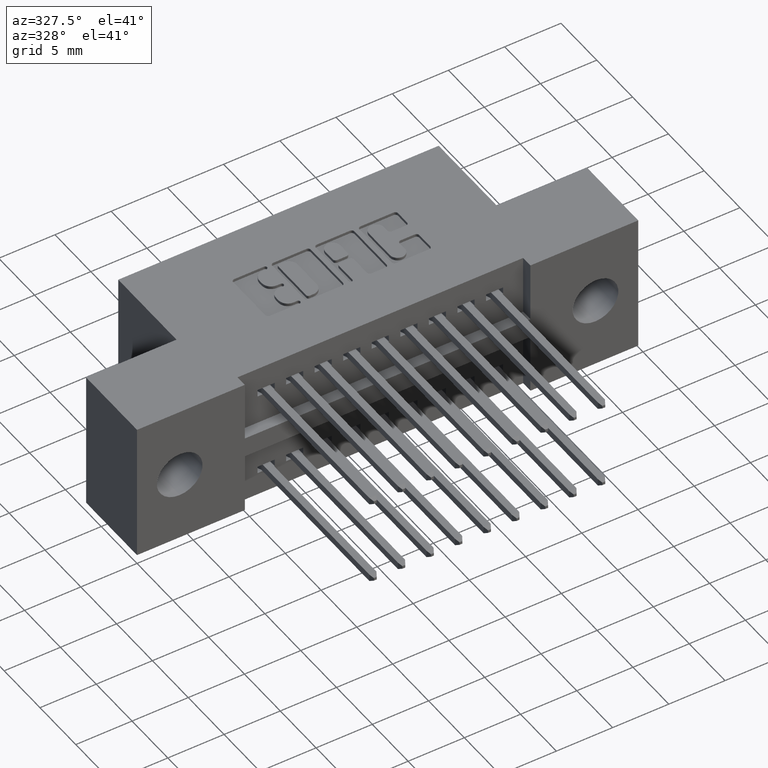
[diagram: clean part render]
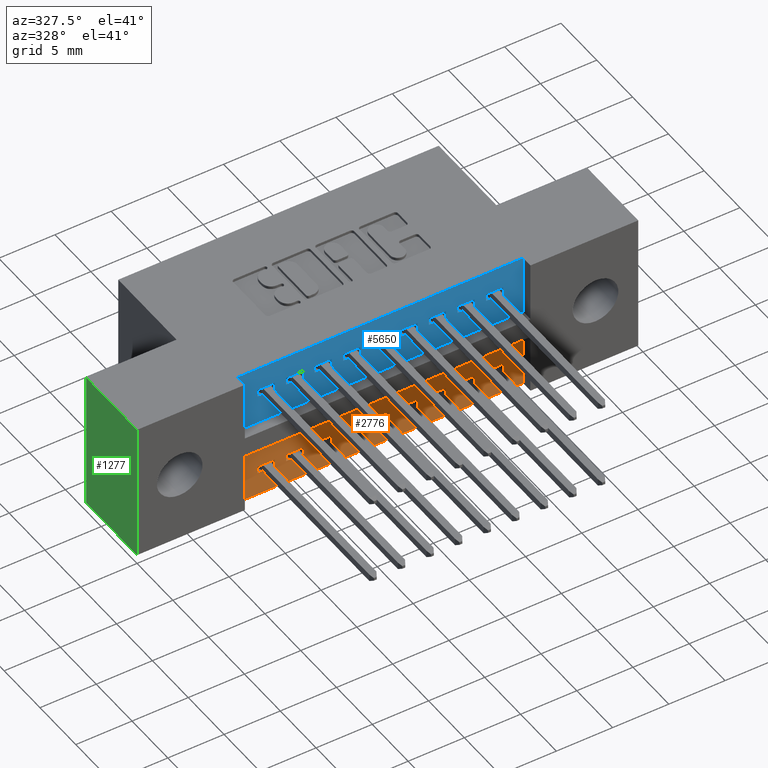
[diagram: same view with three faces highlighted in distinct colors, each labeled with its STEP entity id]
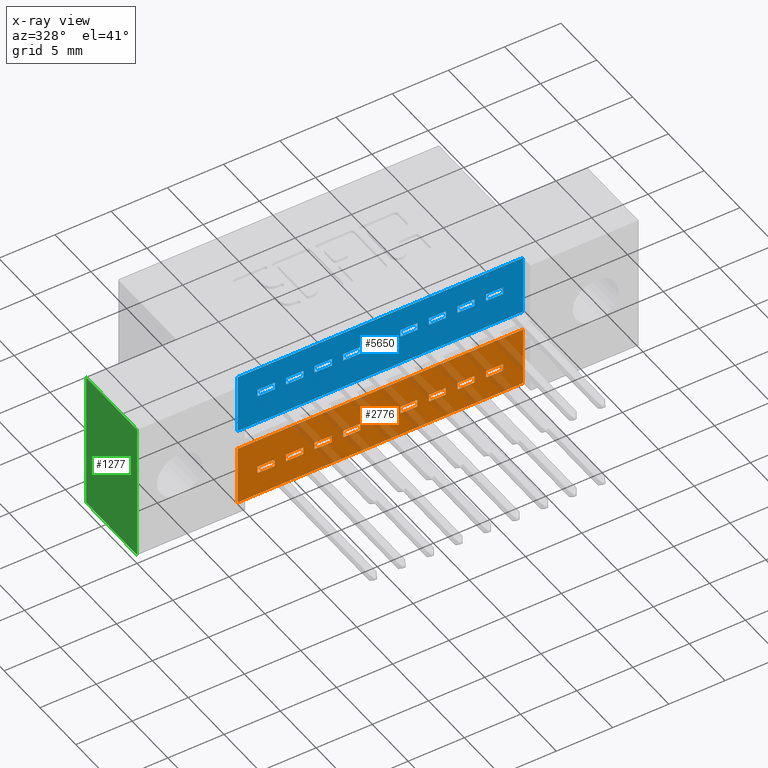
[diagram: x-ray of the same camera — body ghosted, the three highlighted faces saturated]
A machine part, auxiliary view with three faces highlighted in distinct colors.
The next image is the same camera in x-ray (body ghosted, the three faces saturated) — at least one of them is partly hidden behind the body in this view.
Their STEP definitions:

[orange] entity #2776 — the highlighted planar face has unit normal (0, 1, 0).
#5 = VECTOR ( 'NONE', #8980, 39.37007874015748100 ) ;
#42 = LINE ( 'NONE', #9139, #7100 ) ;
#61 = DIRECTION ( 'NONE',  ( 0.0000000000000000000, 3.414809992080328000E-016, -1.000000000000000000 ) ) ;
#78 = CARTESIAN_POINT ( 'NONE',  ( 0.9475000000000001200, 0.03999999999999998000, -0.3825000000000002300 ) ) ;
#96 = VERTEX_POINT ( 'NONE', #2371 ) ;
#251 = EDGE_CURVE ( 'NONE', #5033, #8121, #6001, .T. ) ;
#265 = VECTOR ( 'NONE', #3329, 39.37007874015748100 ) ;
#297 = ORIENTED_EDGE ( 'NONE', *, *, #9312, .T. ) ;
#308 = DIRECTION ( 'NONE',  ( 1.000000000000000000, -0.0000000000000000000, -0.0000000000000000000 ) ) ;
#332 = DIRECTION ( 'NONE',  ( 0.0000000000000000000, 3.414809992080328000E-016, -1.000000000000000000 ) ) ;
#355 = ORIENTED_EDGE ( 'NONE', *, *, #532, .T. ) ;
#365 = EDGE_CURVE ( 'NONE', #9446, #3753, #1598, .T. ) ;
#443 = VERTEX_POINT ( 'NONE', #9248 ) ;
#469 = EDGE_CURVE ( 'NONE', #8710, #6015, #3802, .T. ) ;
#481 = CARTESIAN_POINT ( 'NONE',  ( 1.247500000000000300, 0.03999999999999998000, -0.3825000000000002800 ) ) ;
#500 = DIRECTION ( 'NONE',  ( 1.000000000000000000, -0.0000000000000000000, -0.0000000000000000000 ) ) ;
#532 = EDGE_CURVE ( 'NONE', #5941, #6668, #1471, .T. ) ;
#541 = ORIENTED_EDGE ( 'NONE', *, *, #5790, .T. ) ;
#566 = CARTESIAN_POINT ( 'NONE',  ( 0.8475000000000000300, 0.03999999999999999400, -0.4075000000000002500 ) ) ;
#570 = CARTESIAN_POINT ( 'NONE',  ( 1.147500000000000000, 0.03999999999999998000, -0.3825000000000002300 ) ) ;
#578 = EDGE_LOOP ( 'NONE', ( #721, #2257, #7390, #3874 ) ) ;
#587 = VERTEX_POINT ( 'NONE', #5511 ) ;
#588 = CARTESIAN_POINT ( 'NONE',  ( 1.047499999999999900, 0.03999999999999999400, -0.4075000000000002500 ) ) ;
#643 = VECTOR ( 'NONE', #6547, 39.37007874015748100 ) ;
#665 = DIRECTION ( 'NONE',  ( 1.000000000000000000, 0.0000000000000000000, 0.0000000000000000000 ) ) ;
#679 = VERTEX_POINT ( 'NONE', #8188 ) ;
#721 = ORIENTED_EDGE ( 'NONE', *, *, #6094, .F. ) ;
#722 = LINE ( 'NONE', #9487, #6084 ) ;
#808 = ORIENTED_EDGE ( 'NONE', *, *, #8616, .F. ) ;
#825 = VECTOR ( 'NONE', #4637, 39.37007874015748100 ) ;
#844 = LINE ( 'NONE', #1174, #4152 ) ;
#861 = EDGE_CURVE ( 'NONE', #5673, #679, #6728, .T. ) ;
#875 = VECTOR ( 'NONE', #6428, 39.37007874015748100 ) ;
#937 = VERTEX_POINT ( 'NONE', #7529 ) ;
#946 = DIRECTION ( 'NONE',  ( 0.0000000000000000000, 3.414809992080328000E-016, -1.000000000000000000 ) ) ;
#964 = VERTEX_POINT ( 'NONE', #570 ) ;
#1069 = LINE ( 'NONE', #2158, #7262 ) ;
#1082 = EDGE_LOOP ( 'NONE', ( #9564, #8537, #2926, #355 ) ) ;
#1088 = ORIENTED_EDGE ( 'NONE', *, *, #9061, .T. ) ;
#1108 = EDGE_CURVE ( 'NONE', #2519, #3353, #2337, .T. ) ;
#1161 = VERTEX_POINT ( 'NONE', #7993 ) ;
#1174 = CARTESIAN_POINT ( 'NONE',  ( 0.9475000000000001200, 0.03999999999999998000, -0.3825000000000002300 ) ) ;
#1195 = FACE_OUTER_BOUND ( 'NONE', #4732, .T. ) ;
#1220 = EDGE_CURVE ( 'NONE', #9446, #443, #2595, .T. ) ;
#1244 = EDGE_CURVE ( 'NONE', #6015, #8584, #8891, .T. ) ;
#1304 = LINE ( 'NONE', #1553, #825 ) ;
#1305 = EDGE_CURVE ( 'NONE', #9928, #1161, #6947, .T. ) ;
#1359 = EDGE_CURVE ( 'NONE', #8710, #1525, #7184, .T. ) ;
#1423 = FACE_BOUND ( 'NONE', #3952, .T. ) ;
#1453 = DIRECTION ( 'NONE',  ( 0.0000000000000000000, 3.414809992080328000E-016, -1.000000000000000000 ) ) ;
#1471 = LINE ( 'NONE', #7174, #875 ) ;
#1489 = CARTESIAN_POINT ( 'NONE',  ( 0.7475000000000000500, 0.03999999999999998000, -0.3825000000000002300 ) ) ;
#1503 = CARTESIAN_POINT ( 'NONE',  ( 1.007500000000000100, 0.04000000000000000100, -0.4075000000000002500 ) ) ;
#1522 = VECTOR ( 'NONE', #9470, 39.37007874015748100 ) ;
#1525 = VERTEX_POINT ( 'NONE', #8308 ) ;
#1553 = CARTESIAN_POINT ( 'NONE',  ( 0.6474999999999999600, 0.03999999999999999400, -0.4075000000000001400 ) ) ;
#1598 = LINE ( 'NONE', #2781, #6114 ) ;
#1658 = VECTOR ( 'NONE', #3712, 39.37007874015748100 ) ;
#1670 = VERTEX_POINT ( 'NONE', #4026 ) ;
#1753 = CARTESIAN_POINT ( 'NONE',  ( 0.7475000000000000500, 0.03999999999999998000, -0.3825000000000002300 ) ) ;
#1784 = EDGE_LOOP ( 'NONE', ( #9208, #9144, #1088, #9062 ) ) ;
#1788 = VECTOR ( 'NONE', #8856, 39.37007874015748100 ) ;
#1817 = CARTESIAN_POINT ( 'NONE',  ( 0.6474999999999999600, 0.03999999999999998000, -0.3825000000000001700 ) ) ;
#1874 = CARTESIAN_POINT ( 'NONE',  ( 0.5475000000000001000, 0.03999999999999998000, -0.3825000000000001700 ) ) ;
#1880 = VECTOR ( 'NONE', #5863, 39.37007874015748100 ) ;
#1885 = CARTESIAN_POINT ( 'NONE',  ( 0.9475000000000001200, 0.03999999999999999400, -0.4075000000000002500 ) ) ;
#1901 = DIRECTION ( 'NONE',  ( 3.252199992457456200E-016, 0.0000000000000000000, -1.000000000000000000 ) ) ;
#1913 = CARTESIAN_POINT ( 'NONE',  ( 0.7475000000000000500, 0.03999999999999998000, -0.3825000000000002300 ) ) ;
#1937 = FACE_BOUND ( 'NONE', #1082, .T. ) ;
#1964 = VECTOR ( 'NONE', #1453, 39.37007874015748100 ) ;
#2015 = VERTEX_POINT ( 'NONE', #6095 ) ;
#2036 = EDGE_CURVE ( 'NONE', #679, #2860, #7892, .T. ) ;
#2124 = ORIENTED_EDGE ( 'NONE', *, *, #9115, .F. ) ;
#2142 = DIRECTION ( 'NONE',  ( 1.000000000000000000, -0.0000000000000000000, -0.0000000000000000000 ) ) ;
#2158 = CARTESIAN_POINT ( 'NONE',  ( 1.147500000000000000, 0.03999999999999998000, -0.3825000000000002300 ) ) ;
#2168 = ORIENTED_EDGE ( 'NONE', *, *, #3098, .F. ) ;
#2175 = FACE_BOUND ( 'NONE', #1784, .T. ) ;
#2180 = CARTESIAN_POINT ( 'NONE',  ( 0.7475000000000000500, 0.03999999999999999400, -0.4075000000000002500 ) ) ;
#2185 = CARTESIAN_POINT ( 'NONE',  ( 1.307500000000000100, 0.04000000000000000100, -0.4075000000000003100 ) ) ;
#2199 = CARTESIAN_POINT ( 'NONE',  ( 0.4475000000000000600, 0.03999999999999999400, -0.4075000000000001400 ) ) ;
#2257 = ORIENTED_EDGE ( 'NONE', *, *, #1108, .F. ) ;
#2270 = EDGE_CURVE ( 'NONE', #1525, #8584, #2929, .T. ) ;
#2275 = CARTESIAN_POINT ( 'NONE',  ( 0.3775000000000000000, 0.04000000000000000100, -0.2800000000000000300 ) ) ;
#2289 = ORIENTED_EDGE ( 'NONE', *, *, #6640, .T. ) ;
#2291 = VECTOR ( 'NONE', #7655, 39.37007874015748100 ) ;
#2337 = LINE ( 'NONE', #6403, #265 ) ;
#2352 = EDGE_CURVE ( 'NONE', #96, #2863, #9872, .T. ) ;
#2371 = CARTESIAN_POINT ( 'NONE',  ( 0.3775000000000000000, 0.04000000000000000100, -0.2800000000000000300 ) ) ;
#2481 = VERTEX_POINT ( 'NONE', #8965 ) ;
#2519 = VERTEX_POINT ( 'NONE', #5111 ) ;
#2538 = ORIENTED_EDGE ( 'NONE', *, *, #1359, .T. ) ;
#2552 = LINE ( 'NONE', #1913, #3532 ) ;
#2570 = CARTESIAN_POINT ( 'NONE',  ( 0.6075000000000000400, 0.03999999999999998000, -0.3825000000000001700 ) ) ;
#2595 = LINE ( 'NONE', #6555, #5 ) ;
#2616 = EDGE_CURVE ( 'NONE', #587, #96, #8864, .T. ) ;
#2637 = ORIENTED_EDGE ( 'NONE', *, *, #7113, .F. ) ;
#2644 = CARTESIAN_POINT ( 'NONE',  ( 1.207500000000000000, 0.04000000000000000100, -0.4075000000000002500 ) ) ;
#2678 = ORIENTED_EDGE ( 'NONE', *, *, #251, .T. ) ;
#2705 = EDGE_CURVE ( 'NONE', #8930, #8353, #8253, .T. ) ;
#2716 = DIRECTION ( 'NONE',  ( 1.000000000000000000, -0.0000000000000000000, -0.0000000000000000000 ) ) ;
#2733 = ORIENTED_EDGE ( 'NONE', *, *, #1220, .T. ) ;
#2752 = CARTESIAN_POINT ( 'NONE',  ( 1.247500000000000300, 0.03999999999999998000, -0.3825000000000002800 ) ) ;
#2756 = CARTESIAN_POINT ( 'NONE',  ( 0.9475000000000001200, 0.03999999999999999400, -0.4075000000000002500 ) ) ;
#2776 = ADVANCED_FACE ( 'NONE', ( #8129, #1937, #1423, #7389, #5337, #3876, #3281, #10083, #2175, #1195 ), #7787, .F. ) ;
#2781 = CARTESIAN_POINT ( 'NONE',  ( 1.047499999999999900, 0.03999999999999998000, -0.3825000000000002300 ) ) ;
#2860 = VERTEX_POINT ( 'NONE', #3236 ) ;
#2863 = VERTEX_POINT ( 'NONE', #9582 ) ;
#2874 = CARTESIAN_POINT ( 'NONE',  ( 0.9075000000000000800, 0.04000000000000000100, -0.4075000000000002500 ) ) ;
#2926 = ORIENTED_EDGE ( 'NONE', *, *, #6934, .T. ) ;
#2929 = LINE ( 'NONE', #5488, #6576 ) ;
#2955 = EDGE_CURVE ( 'NONE', #5673, #4915, #9345, .T. ) ;
#3084 = CARTESIAN_POINT ( 'NONE',  ( 1.107499999999999900, 0.03999999999999998000, -0.3825000000000002300 ) ) ;
#3098 = EDGE_CURVE ( 'NONE', #4915, #2860, #1304, .T. ) ;
#3171 = EDGE_CURVE ( 'NONE', #6908, #8334, #8876, .T. ) ;
#3179 = VECTOR ( 'NONE', #8951, 39.37007874015748100 ) ;
#3184 = LINE ( 'NONE', #3084, #1964 ) ;
#3231 = LINE ( 'NONE', #8221, #3709 ) ;
#3236 = CARTESIAN_POINT ( 'NONE',  ( 0.7075000000000000200, 0.04000000000000000100, -0.4075000000000001400 ) ) ;
#3251 = VECTOR ( 'NONE', #665, 39.37007874015748100 ) ;
#3253 = VERTEX_POINT ( 'NONE', #6462 ) ;
#3269 = VECTOR ( 'NONE', #4030, 39.37007874015748100 ) ;
#3270 = CARTESIAN_POINT ( 'NONE',  ( 1.007500000000000100, 0.03999999999999998000, -0.3825000000000002300 ) ) ;
#3281 = FACE_BOUND ( 'NONE', #9255, .T. ) ;
#3329 = DIRECTION ( 'NONE',  ( 0.0000000000000000000, 3.414809992080328000E-016, -1.000000000000000000 ) ) ;
#3353 = VERTEX_POINT ( 'NONE', #566 ) ;
#3404 = ORIENTED_EDGE ( 'NONE', *, *, #8395, .T. ) ;
#3464 = CARTESIAN_POINT ( 'NONE',  ( 0.8075000000000001100, 0.03999999999999998000, -0.3825000000000002300 ) ) ;
#3466 = AXIS2_PLACEMENT_3D ( 'NONE', #9299, #6141, #8481 ) ;
#3532 = VECTOR ( 'NONE', #7332, 39.37007874015748100 ) ;
#3535 = VECTOR ( 'NONE', #946, 39.37007874015748100 ) ;
#3552 = VECTOR ( 'NONE', #5645, 39.37007874015748100 ) ;
#3557 = VECTOR ( 'NONE', #5888, 39.37007874015748100 ) ;
#3569 = CARTESIAN_POINT ( 'NONE',  ( 1.247500000000000300, 0.03999999999999999400, -0.4075000000000003100 ) ) ;
#3658 = LINE ( 'NONE', #1885, #3179 ) ;
#3709 = VECTOR ( 'NONE', #5137, 39.37007874015748100 ) ;
#3710 = CARTESIAN_POINT ( 'NONE',  ( 0.7075000000000000200, 0.03999999999999998000, -0.3825000000000001700 ) ) ;
#3712 = DIRECTION ( 'NONE',  ( 1.000000000000000000, -0.0000000000000000000, -0.0000000000000000000 ) ) ;
#3753 = VERTEX_POINT ( 'NONE', #588 ) ;
#3780 = EDGE_CURVE ( 'NONE', #8689, #6668, #7279, .T. ) ;
#3802 = LINE ( 'NONE', #5247, #5261 ) ;
#3811 = EDGE_LOOP ( 'NONE', ( #7696, #9830, #2538, #6120 ) ) ;
#3874 = ORIENTED_EDGE ( 'NONE', *, *, #2705, .T. ) ;
#3876 = FACE_BOUND ( 'NONE', #6654, .T. ) ;
#3879 = VECTOR ( 'NONE', #2142, 39.37007874015748100 ) ;
#3895 = CARTESIAN_POINT ( 'NONE',  ( 1.147500000000000000, 0.03999999999999998000, -0.3825000000000002300 ) ) ;
#3906 = CARTESIAN_POINT ( 'NONE',  ( 1.047499999999999900, 0.03999999999999998000, -0.3825000000000002300 ) ) ;
#3926 = VECTOR ( 'NONE', #308, 39.37007874015748100 ) ;
#3952 = EDGE_LOOP ( 'NONE', ( #9998, #6633, #2733, #541 ) ) ;
#4026 = CARTESIAN_POINT ( 'NONE',  ( 0.4475000000000000600, 0.03999999999999999400, -0.4075000000000001400 ) ) ;
#4030 = DIRECTION ( 'NONE',  ( 1.000000000000000000, -0.0000000000000000000, -0.0000000000000000000 ) ) ;
#4044 = DIRECTION ( 'NONE',  ( 0.0000000000000000000, 3.414809992080328000E-016, -1.000000000000000000 ) ) ;
#4048 = CARTESIAN_POINT ( 'NONE',  ( 0.9075000000000000800, 0.03999999999999998000, -0.3825000000000002300 ) ) ;
#4152 = VECTOR ( 'NONE', #6596, 39.37007874015748100 ) ;
#4210 = VERTEX_POINT ( 'NONE', #7681 ) ;
#4213 = VECTOR ( 'NONE', #4300, 39.37007874015748100 ) ;
#4254 = LINE ( 'NONE', #8029, #5585 ) ;
#4300 = DIRECTION ( 'NONE',  ( 1.000000000000000000, -0.0000000000000000000, -0.0000000000000000000 ) ) ;
#4407 = VERTEX_POINT ( 'NONE', #2756 ) ;
#4480 = CARTESIAN_POINT ( 'NONE',  ( 1.377499999999999700, 0.04000000000000000100, -0.4900000000000000500 ) ) ;
#4502 = VERTEX_POINT ( 'NONE', #4480 ) ;
#4509 = CARTESIAN_POINT ( 'NONE',  ( 0.6474999999999999600, 0.03999999999999998000, -0.3825000000000001700 ) ) ;
#4637 = DIRECTION ( 'NONE',  ( 1.000000000000000000, -0.0000000000000000000, -0.0000000000000000000 ) ) ;
#4732 = EDGE_LOOP ( 'NONE', ( #4916, #5333, #297, #6880 ) ) ;
#4739 = DIRECTION ( 'NONE',  ( -1.000000000000000000, -0.0000000000000000000, -1.707404996040165300E-016 ) ) ;
#4915 = VERTEX_POINT ( 'NONE', #8429 ) ;
#4916 = ORIENTED_EDGE ( 'NONE', *, *, #2616, .T. ) ;
#4921 = CARTESIAN_POINT ( 'NONE',  ( 0.4475000000000000600, 0.03999999999999998000, -0.3825000000000001700 ) ) ;
#4934 = LINE ( 'NONE', #6745, #6635 ) ;
#5033 = VERTEX_POINT ( 'NONE', #5389 ) ;
#5111 = CARTESIAN_POINT ( 'NONE',  ( 0.8475000000000000300, 0.03999999999999998000, -0.3825000000000002300 ) ) ;
#5137 = DIRECTION ( 'NONE',  ( 1.000000000000000000, -0.0000000000000000000, -0.0000000000000000000 ) ) ;
#5156 = DIRECTION ( 'NONE',  ( 0.0000000000000000000, 3.414809992080328000E-016, -1.000000000000000000 ) ) ;
#5247 = CARTESIAN_POINT ( 'NONE',  ( 1.247500000000000300, 0.03999999999999998000, -0.3825000000000002800 ) ) ;
#5261 = VECTOR ( 'NONE', #8421, 39.37007874015748100 ) ;
#5333 = ORIENTED_EDGE ( 'NONE', *, *, #2352, .T. ) ;
#5337 = FACE_BOUND ( 'NONE', #578, .T. ) ;
#5387 = CARTESIAN_POINT ( 'NONE',  ( 0.6075000000000000400, 0.03999999999999998000, -0.3825000000000001700 ) ) ;
#5389 = CARTESIAN_POINT ( 'NONE',  ( 0.8075000000000001100, 0.03999999999999998000, -0.3825000000000002300 ) ) ;
#5403 = ORIENTED_EDGE ( 'NONE', *, *, #9007, .T. ) ;
#5488 = CARTESIAN_POINT ( 'NONE',  ( 1.307500000000000100, 0.03999999999999998000, -0.3825000000000002800 ) ) ;
#5511 = CARTESIAN_POINT ( 'NONE',  ( 1.377499999999999700, 0.04000000000000000100, -0.2799999999999998600 ) ) ;
#5579 = ORIENTED_EDGE ( 'NONE', *, *, #1305, .F. ) ;
#5585 = VECTOR ( 'NONE', #8061, 39.37007874015748100 ) ;
#5645 = DIRECTION ( 'NONE',  ( 0.0000000000000000000, 3.414809992080328000E-016, -1.000000000000000000 ) ) ;
#5673 = VERTEX_POINT ( 'NONE', #4509 ) ;
#5715 = VECTOR ( 'NONE', #4044, 39.37007874015748100 ) ;
#5722 = CARTESIAN_POINT ( 'NONE',  ( 0.5475000000000001000, 0.03999999999999998000, -0.3825000000000001700 ) ) ;
#5730 = VECTOR ( 'NONE', #332, 39.37007874015748100 ) ;
#5790 = EDGE_CURVE ( 'NONE', #443, #937, #3184, .T. ) ;
#5795 = LINE ( 'NONE', #9153, #3251 ) ;
#5813 = VERTEX_POINT ( 'NONE', #1753 ) ;
#5820 = LINE ( 'NONE', #2180, #1658 ) ;
#5824 = CARTESIAN_POINT ( 'NONE',  ( 1.207500000000000000, 0.03999999999999998000, -0.3825000000000002300 ) ) ;
#5863 = DIRECTION ( 'NONE',  ( 0.0000000000000000000, 3.414809992080328000E-016, -1.000000000000000000 ) ) ;
#5881 = ORIENTED_EDGE ( 'NONE', *, *, #3171, .T. ) ;
#5888 = DIRECTION ( 'NONE',  ( 1.000000000000000000, -0.0000000000000000000, -0.0000000000000000000 ) ) ;
#5941 = VERTEX_POINT ( 'NONE', #5824 ) ;
#5963 = VECTOR ( 'NONE', #1901, 39.37007874015748100 ) ;
#5974 = LINE ( 'NONE', #8264, #3557 ) ;
#6001 = LINE ( 'NONE', #3464, #643 ) ;
#6015 = VERTEX_POINT ( 'NONE', #6495 ) ;
#6084 = VECTOR ( 'NONE', #6456, 39.37007874015748100 ) ;
#6094 = EDGE_CURVE ( 'NONE', #3353, #8353, #5974, .T. ) ;
#6095 = CARTESIAN_POINT ( 'NONE',  ( 0.4475000000000000600, 0.03999999999999998000, -0.3825000000000001700 ) ) ;
#6114 = VECTOR ( 'NONE', #9780, 39.37007874015748100 ) ;
#6120 = ORIENTED_EDGE ( 'NONE', *, *, #2270, .T. ) ;
#6140 = LINE ( 'NONE', #8094, #4213 ) ;
#6141 = DIRECTION ( 'NONE',  ( -0.0000000000000000000, 1.000000000000000000, 0.0000000000000000000 ) ) ;
#6204 = VECTOR ( 'NONE', #7930, 39.37007874015748100 ) ;
#6269 = LINE ( 'NONE', #8882, #1880 ) ;
#6320 = VECTOR ( 'NONE', #8413, 39.37007874015748100 ) ;
#6388 = ORIENTED_EDGE ( 'NONE', *, *, #2036, .T. ) ;
#6403 = CARTESIAN_POINT ( 'NONE',  ( 0.8475000000000000300, 0.03999999999999998000, -0.3825000000000002300 ) ) ;
#6428 = DIRECTION ( 'NONE',  ( 0.0000000000000000000, 3.414809992080328000E-016, -1.000000000000000000 ) ) ;
#6451 = LINE ( 'NONE', #3270, #5715 ) ;
#6456 = DIRECTION ( 'NONE',  ( 1.000000000000000000, -0.0000000000000000000, -0.0000000000000000000 ) ) ;
#6462 = CARTESIAN_POINT ( 'NONE',  ( 0.5075000000000000600, 0.03999999999999998000, -0.3825000000000001700 ) ) ;
#6495 = CARTESIAN_POINT ( 'NONE',  ( 1.247500000000000300, 0.03999999999999999400, -0.4075000000000003100 ) ) ;
#6510 = CARTESIAN_POINT ( 'NONE',  ( 0.4475000000000000600, 0.03999999999999998000, -0.3825000000000001700 ) ) ;
#6547 = DIRECTION ( 'NONE',  ( 0.0000000000000000000, 3.414809992080328000E-016, -1.000000000000000000 ) ) ;
#6549 = EDGE_CURVE ( 'NONE', #4502, #587, #4254, .T. ) ;
#6555 = CARTESIAN_POINT ( 'NONE',  ( 1.047499999999999900, 0.03999999999999998000, -0.3825000000000002300 ) ) ;
#6576 = VECTOR ( 'NONE', #61, 39.37007874015748100 ) ;
#6596 = DIRECTION ( 'NONE',  ( 0.0000000000000000000, 3.414809992080328000E-016, -1.000000000000000000 ) ) ;
#6633 = ORIENTED_EDGE ( 'NONE', *, *, #365, .F. ) ;
#6635 = VECTOR ( 'NONE', #500, 39.37007874015748100 ) ;
#6640 = EDGE_CURVE ( 'NONE', #5813, #5033, #2552, .T. ) ;
#6654 = EDGE_LOOP ( 'NONE', ( #2637, #9056, #2289, #2678 ) ) ;
#6661 = VECTOR ( 'NONE', #8851, 39.37007874015748100 ) ;
#6668 = VERTEX_POINT ( 'NONE', #2644 ) ;
#6696 = VERTEX_POINT ( 'NONE', #1503 ) ;
#6719 = VECTOR ( 'NONE', #2716, 39.37007874015748100 ) ;
#6728 = LINE ( 'NONE', #1817, #3926 ) ;
#6745 = CARTESIAN_POINT ( 'NONE',  ( 0.9475000000000001200, 0.03999999999999998000, -0.3825000000000002300 ) ) ;
#6774 = ORIENTED_EDGE ( 'NONE', *, *, #9166, .F. ) ;
#6806 = VECTOR ( 'NONE', #4739, 39.37007874015748100 ) ;
#6810 = LINE ( 'NONE', #4921, #6204 ) ;
#6861 = EDGE_CURVE ( 'NONE', #964, #8689, #1069, .T. ) ;
#6880 = ORIENTED_EDGE ( 'NONE', *, *, #6549, .T. ) ;
#6908 = VERTEX_POINT ( 'NONE', #5387 ) ;
#6934 = EDGE_CURVE ( 'NONE', #964, #5941, #9721, .T. ) ;
#6947 = LINE ( 'NONE', #1874, #5730 ) ;
#7100 = VECTOR ( 'NONE', #7429, 39.37007874015748100 ) ;
#7113 = EDGE_CURVE ( 'NONE', #4210, #8121, #5820, .T. ) ;
#7131 = LINE ( 'NONE', #6510, #6661 ) ;
#7174 = CARTESIAN_POINT ( 'NONE',  ( 1.207500000000000000, 0.03999999999999998000, -0.3825000000000002300 ) ) ;
#7184 = LINE ( 'NONE', #2752, #7905 ) ;
#7262 = VECTOR ( 'NONE', #5156, 39.37007874015748100 ) ;
#7279 = LINE ( 'NONE', #9849, #3879 ) ;
#7316 = VERTEX_POINT ( 'NONE', #7934 ) ;
#7332 = DIRECTION ( 'NONE',  ( 1.000000000000000000, -0.0000000000000000000, -0.0000000000000000000 ) ) ;
#7389 = FACE_BOUND ( 'NONE', #7610, .T. ) ;
#7390 = ORIENTED_EDGE ( 'NONE', *, *, #8608, .T. ) ;
#7396 = CARTESIAN_POINT ( 'NONE',  ( 1.147500000000000000, 0.03999999999999999400, -0.4075000000000002500 ) ) ;
#7429 = DIRECTION ( 'NONE',  ( 1.000000000000000000, -0.0000000000000000000, -0.0000000000000000000 ) ) ;
#7529 = CARTESIAN_POINT ( 'NONE',  ( 1.107499999999999900, 0.04000000000000000100, -0.4075000000000002500 ) ) ;
#7545 = EDGE_CURVE ( 'NONE', #2015, #1670, #7131, .T. ) ;
#7610 = EDGE_LOOP ( 'NONE', ( #2124, #6774, #3404, #8765 ) ) ;
#7655 = DIRECTION ( 'NONE',  ( 1.000000000000000000, -0.0000000000000000000, -0.0000000000000000000 ) ) ;
#7681 = CARTESIAN_POINT ( 'NONE',  ( 0.7475000000000000500, 0.03999999999999999400, -0.4075000000000002500 ) ) ;
#7696 = ORIENTED_EDGE ( 'NONE', *, *, #1244, .F. ) ;
#7703 = ORIENTED_EDGE ( 'NONE', *, *, #861, .T. ) ;
#7750 = EDGE_CURVE ( 'NONE', #5813, #4210, #8950, .T. ) ;
#7787 = PLANE ( 'NONE',  #3466 ) ;
#7892 = LINE ( 'NONE', #3710, #6320 ) ;
#7905 = VECTOR ( 'NONE', #9788, 39.37007874015748100 ) ;
#7920 = CARTESIAN_POINT ( 'NONE',  ( 0.8075000000000001100, 0.04000000000000000100, -0.4075000000000002500 ) ) ;
#7930 = DIRECTION ( 'NONE',  ( 1.000000000000000000, -0.0000000000000000000, -0.0000000000000000000 ) ) ;
#7934 = CARTESIAN_POINT ( 'NONE',  ( 1.007500000000000100, 0.03999999999999998000, -0.3825000000000002300 ) ) ;
#7939 = EDGE_LOOP ( 'NONE', ( #808, #5579, #5403, #5881 ) ) ;
#7993 = CARTESIAN_POINT ( 'NONE',  ( 0.5475000000000001000, 0.03999999999999999400, -0.4075000000000001400 ) ) ;
#8029 = CARTESIAN_POINT ( 'NONE',  ( 1.377499999999999700, 0.04000000000000000100, -0.2799999999999998600 ) ) ;
#8040 = VERTEX_POINT ( 'NONE', #78 ) ;
#8061 = DIRECTION ( 'NONE',  ( -0.0000000000000000000, -0.0000000000000000000, 1.000000000000000000 ) ) ;
#8083 = CARTESIAN_POINT ( 'NONE',  ( 0.3775000000000000000, 0.04000000000000000100, -0.2800000000000000300 ) ) ;
#8094 = CARTESIAN_POINT ( 'NONE',  ( 1.047499999999999900, 0.03999999999999999400, -0.4075000000000002500 ) ) ;
#8105 = CARTESIAN_POINT ( 'NONE',  ( 0.6474999999999999600, 0.03999999999999998000, -0.3825000000000001700 ) ) ;
#8121 = VERTEX_POINT ( 'NONE', #7920 ) ;
#8129 = FACE_BOUND ( 'NONE', #3811, .T. ) ;
#8166 = CARTESIAN_POINT ( 'NONE',  ( 0.6075000000000000400, 0.04000000000000000100, -0.4075000000000001400 ) ) ;
#8188 = CARTESIAN_POINT ( 'NONE',  ( 0.7075000000000000200, 0.03999999999999998000, -0.3825000000000001700 ) ) ;
#8221 = CARTESIAN_POINT ( 'NONE',  ( 0.8475000000000000300, 0.03999999999999998000, -0.3825000000000002300 ) ) ;
#8253 = LINE ( 'NONE', #4048, #3535 ) ;
#8264 = CARTESIAN_POINT ( 'NONE',  ( 0.8475000000000000300, 0.03999999999999999400, -0.4075000000000002500 ) ) ;
#8288 = CARTESIAN_POINT ( 'NONE',  ( 0.9075000000000000800, 0.03999999999999998000, -0.3825000000000002300 ) ) ;
#8289 = EDGE_CURVE ( 'NONE', #3753, #937, #6140, .T. ) ;
#8303 = EDGE_CURVE ( 'NONE', #3253, #2481, #6269, .T. ) ;
#8308 = CARTESIAN_POINT ( 'NONE',  ( 1.307500000000000100, 0.03999999999999998000, -0.3825000000000002800 ) ) ;
#8334 = VERTEX_POINT ( 'NONE', #8166 ) ;
#8353 = VERTEX_POINT ( 'NONE', #2874 ) ;
#8395 = EDGE_CURVE ( 'NONE', #8040, #7316, #4934, .T. ) ;
#8413 = DIRECTION ( 'NONE',  ( 0.0000000000000000000, 3.414809992080328000E-016, -1.000000000000000000 ) ) ;
#8421 = DIRECTION ( 'NONE',  ( 0.0000000000000000000, 3.414809992080328000E-016, -1.000000000000000000 ) ) ;
#8429 = CARTESIAN_POINT ( 'NONE',  ( 0.6474999999999999600, 0.03999999999999999400, -0.4075000000000001400 ) ) ;
#8481 = DIRECTION ( 'NONE',  ( 0.0000000000000000000, -0.0000000000000000000, 1.000000000000000000 ) ) ;
#8537 = ORIENTED_EDGE ( 'NONE', *, *, #6861, .F. ) ;
#8584 = VERTEX_POINT ( 'NONE', #2185 ) ;
#8608 = EDGE_CURVE ( 'NONE', #2519, #8930, #3231, .T. ) ;
#8616 = EDGE_CURVE ( 'NONE', #1161, #8334, #42, .T. ) ;
#8689 = VERTEX_POINT ( 'NONE', #7396 ) ;
#8710 = VERTEX_POINT ( 'NONE', #481 ) ;
#8765 = ORIENTED_EDGE ( 'NONE', *, *, #8991, .T. ) ;
#8851 = DIRECTION ( 'NONE',  ( 0.0000000000000000000, 3.414809992080328000E-016, -1.000000000000000000 ) ) ;
#8856 = DIRECTION ( 'NONE',  ( 0.0000000000000000000, 3.414809992080328000E-016, -1.000000000000000000 ) ) ;
#8864 = LINE ( 'NONE', #2275, #6806 ) ;
#8876 = LINE ( 'NONE', #2570, #3552 ) ;
#8882 = CARTESIAN_POINT ( 'NONE',  ( 0.5075000000000000600, 0.03999999999999998000, -0.3825000000000001700 ) ) ;
#8891 = LINE ( 'NONE', #3569, #6719 ) ;
#8930 = VERTEX_POINT ( 'NONE', #8288 ) ;
#8940 = LINE ( 'NONE', #2199, #2291 ) ;
#8950 = LINE ( 'NONE', #1489, #1522 ) ;
#8951 = DIRECTION ( 'NONE',  ( 1.000000000000000000, -0.0000000000000000000, -0.0000000000000000000 ) ) ;
#8965 = CARTESIAN_POINT ( 'NONE',  ( 0.5074999999999999500, 0.04000000000000000100, -0.4075000000000001400 ) ) ;
#8980 = DIRECTION ( 'NONE',  ( 1.000000000000000000, -0.0000000000000000000, -0.0000000000000000000 ) ) ;
#8991 = EDGE_CURVE ( 'NONE', #7316, #6696, #6451, .T. ) ;
#9007 = EDGE_CURVE ( 'NONE', #9928, #6908, #722, .T. ) ;
#9056 = ORIENTED_EDGE ( 'NONE', *, *, #7750, .F. ) ;
#9061 = EDGE_CURVE ( 'NONE', #2015, #3253, #6810, .T. ) ;
#9062 = ORIENTED_EDGE ( 'NONE', *, *, #8303, .T. ) ;
#9115 = EDGE_CURVE ( 'NONE', #4407, #6696, #3658, .T. ) ;
#9139 = CARTESIAN_POINT ( 'NONE',  ( 0.5475000000000001000, 0.03999999999999999400, -0.4075000000000001400 ) ) ;
#9144 = ORIENTED_EDGE ( 'NONE', *, *, #7545, .F. ) ;
#9153 = CARTESIAN_POINT ( 'NONE',  ( 0.3775000000000000600, 0.04000000000000000100, -0.4900000000000000500 ) ) ;
#9166 = EDGE_CURVE ( 'NONE', #8040, #4407, #844, .T. ) ;
#9208 = ORIENTED_EDGE ( 'NONE', *, *, #9376, .F. ) ;
#9248 = CARTESIAN_POINT ( 'NONE',  ( 1.107499999999999900, 0.03999999999999998000, -0.3825000000000002300 ) ) ;
#9255 = EDGE_LOOP ( 'NONE', ( #2168, #9639, #7703, #6388 ) ) ;
#9299 = CARTESIAN_POINT ( 'NONE',  ( 1.377499999999999700, 0.04000000000000000100, -0.2799999999999998600 ) ) ;
#9312 = EDGE_CURVE ( 'NONE', #2863, #4502, #5795, .T. ) ;
#9345 = LINE ( 'NONE', #8105, #1788 ) ;
#9376 = EDGE_CURVE ( 'NONE', #1670, #2481, #8940, .T. ) ;
#9446 = VERTEX_POINT ( 'NONE', #3906 ) ;
#9470 = DIRECTION ( 'NONE',  ( 0.0000000000000000000, 3.414809992080328000E-016, -1.000000000000000000 ) ) ;
#9487 = CARTESIAN_POINT ( 'NONE',  ( 0.5475000000000001000, 0.03999999999999998000, -0.3825000000000001700 ) ) ;
#9564 = ORIENTED_EDGE ( 'NONE', *, *, #3780, .F. ) ;
#9582 = CARTESIAN_POINT ( 'NONE',  ( 0.3775000000000000600, 0.04000000000000000100, -0.4900000000000000500 ) ) ;
#9639 = ORIENTED_EDGE ( 'NONE', *, *, #2955, .F. ) ;
#9721 = LINE ( 'NONE', #3895, #3269 ) ;
#9780 = DIRECTION ( 'NONE',  ( 0.0000000000000000000, 3.414809992080328000E-016, -1.000000000000000000 ) ) ;
#9788 = DIRECTION ( 'NONE',  ( 1.000000000000000000, -0.0000000000000000000, -0.0000000000000000000 ) ) ;
#9830 = ORIENTED_EDGE ( 'NONE', *, *, #469, .F. ) ;
#9849 = CARTESIAN_POINT ( 'NONE',  ( 1.147500000000000000, 0.03999999999999999400, -0.4075000000000002500 ) ) ;
#9872 = LINE ( 'NONE', #8083, #5963 ) ;
#9928 = VERTEX_POINT ( 'NONE', #5722 ) ;
#9998 = ORIENTED_EDGE ( 'NONE', *, *, #8289, .F. ) ;
#10083 = FACE_BOUND ( 'NONE', #7939, .T. ) ;

[blue] entity #5650 — the highlighted planar face has unit normal (0, 1, 0).
#14 = CARTESIAN_POINT ( 'NONE',  ( 0.7475000000000000500, 0.03999999999999999400, -0.08250000000000004600 ) ) ;
#39 = EDGE_CURVE ( 'NONE', #5967, #8820, #1007, .T. ) ;
#58 = VERTEX_POINT ( 'NONE', #1492 ) ;
#97 = VECTOR ( 'NONE', #3829, 39.37007874015748100 ) ;
#113 = VERTEX_POINT ( 'NONE', #1630 ) ;
#117 = VECTOR ( 'NONE', #7017, 39.37007874015748100 ) ;
#171 = LINE ( 'NONE', #8562, #4434 ) ;
#240 = EDGE_LOOP ( 'NONE', ( #881, #595, #1317, #7789 ) ) ;
#309 = VECTOR ( 'NONE', #3634, 39.37007874015748100 ) ;
#370 = CARTESIAN_POINT ( 'NONE',  ( 0.5475000000000001000, 0.03999999999999999400, -0.08250000000000003200 ) ) ;
#396 = VECTOR ( 'NONE', #435, 39.37007874015748100 ) ;
#435 = DIRECTION ( 'NONE',  ( 1.000000000000000000, -0.0000000000000000000, -0.0000000000000000000 ) ) ;
#439 = LINE ( 'NONE', #8939, #8438 ) ;
#474 = ORIENTED_EDGE ( 'NONE', *, *, #9855, .T. ) ;
#477 = ORIENTED_EDGE ( 'NONE', *, *, #3415, .F. ) ;
#519 = VERTEX_POINT ( 'NONE', #6834 ) ;
#522 = EDGE_CURVE ( 'NONE', #4201, #7080, #9143, .T. ) ;
#559 = CARTESIAN_POINT ( 'NONE',  ( 0.9475000000000001200, 0.03999999999999999400, -0.08250000000000007300 ) ) ;
#571 = VECTOR ( 'NONE', #6348, 39.37007874015748100 ) ;
#572 = FACE_BOUND ( 'NONE', #1659, .T. ) ;
#576 = ORIENTED_EDGE ( 'NONE', *, *, #3868, .T. ) ;
#595 = ORIENTED_EDGE ( 'NONE', *, *, #1367, .T. ) ;
#613 = LINE ( 'NONE', #9254, #8745 ) ;
#618 = CARTESIAN_POINT ( 'NONE',  ( 1.377499999999999700, 0.04000000000000000100, -0.2099999999999999400 ) ) ;
#625 = CARTESIAN_POINT ( 'NONE',  ( 0.4475000000000000600, 0.03999999999999999400, -0.08250000000000000400 ) ) ;
#662 = EDGE_LOOP ( 'NONE', ( #4788, #6885, #688, #4021 ) ) ;
#688 = ORIENTED_EDGE ( 'NONE', *, *, #2504, .T. ) ;
#757 = CARTESIAN_POINT ( 'NONE',  ( 1.047499999999999900, 0.03999999999999998000, -0.1075000000000001000 ) ) ;
#759 = VERTEX_POINT ( 'NONE', #7827 ) ;
#771 = VERTEX_POINT ( 'NONE', #14 ) ;
#821 = ORIENTED_EDGE ( 'NONE', *, *, #8526, .T. ) ;
#881 = ORIENTED_EDGE ( 'NONE', *, *, #4937, .F. ) ;
#939 = EDGE_CURVE ( 'NONE', #58, #1514, #5868, .T. ) ;
#968 = ORIENTED_EDGE ( 'NONE', *, *, #3396, .T. ) ;
#983 = VECTOR ( 'NONE', #2215, 39.37007874015748100 ) ;
#1007 = LINE ( 'NONE', #6234, #5154 ) ;
#1024 = EDGE_LOOP ( 'NONE', ( #5430, #3364, #7427, #8464 ) ) ;
#1040 = ORIENTED_EDGE ( 'NONE', *, *, #4114, .T. ) ;
#1075 = VECTOR ( 'NONE', #9247, 39.37007874015748100 ) ;
#1097 = CARTESIAN_POINT ( 'NONE',  ( 0.5475000000000001000, 0.03999999999999998000, -0.1075000000000000300 ) ) ;
#1204 = LINE ( 'NONE', #6052, #10091 ) ;
#1273 = DIRECTION ( 'NONE',  ( -0.0000000000000000000, -3.414809992080328000E-016, -1.000000000000000000 ) ) ;
#1314 = CARTESIAN_POINT ( 'NONE',  ( 0.7075000000000000200, 0.04000000000000000100, -0.1075000000000000500 ) ) ;
#1316 = EDGE_CURVE ( 'NONE', #2852, #8721, #1697, .T. ) ;
#1317 = ORIENTED_EDGE ( 'NONE', *, *, #5439, .T. ) ;
#1367 = EDGE_CURVE ( 'NONE', #1541, #3581, #7657, .T. ) ;
#1396 = DIRECTION ( 'NONE',  ( -0.0000000000000000000, -3.414809992080328000E-016, -1.000000000000000000 ) ) ;
#1419 = CARTESIAN_POINT ( 'NONE',  ( 0.6474999999999999600, 0.03999999999999999400, -0.08250000000000004600 ) ) ;
#1434 = DIRECTION ( 'NONE',  ( -0.0000000000000000000, -3.414809992080328000E-016, -1.000000000000000000 ) ) ;
#1439 = VECTOR ( 'NONE', #2921, 39.37007874015748100 ) ;
#1492 = CARTESIAN_POINT ( 'NONE',  ( 0.7475000000000000500, 0.03999999999999998000, -0.1075000000000000500 ) ) ;
#1497 = CARTESIAN_POINT ( 'NONE',  ( 0.6075000000000000400, 0.04000000000000000100, -0.1075000000000000300 ) ) ;
#1509 = EDGE_CURVE ( 'NONE', #519, #1797, #4285, .T. ) ;
#1514 = VERTEX_POINT ( 'NONE', #6126 ) ;
#1528 = LINE ( 'NONE', #3279, #571 ) ;
#1540 = EDGE_CURVE ( 'NONE', #771, #58, #3787, .T. ) ;
#1541 = VERTEX_POINT ( 'NONE', #5417 ) ;
#1566 = LINE ( 'NONE', #9690, #4750 ) ;
#1630 = CARTESIAN_POINT ( 'NONE',  ( 1.107499999999999900, 0.03999999999999999400, -0.08250000000000008700 ) ) ;
#1656 = DIRECTION ( 'NONE',  ( -0.0000000000000000000, -3.414809992080328000E-016, -1.000000000000000000 ) ) ;
#1659 = EDGE_LOOP ( 'NONE', ( #477, #576, #8976, #8924 ) ) ;
#1673 = EDGE_CURVE ( 'NONE', #8309, #7008, #5122, .T. ) ;
#1697 = LINE ( 'NONE', #6615, #396 ) ;
#1792 = DIRECTION ( 'NONE',  ( 1.000000000000000000, -0.0000000000000000000, -0.0000000000000000000 ) ) ;
#1797 = VERTEX_POINT ( 'NONE', #7234 ) ;
#1813 = EDGE_CURVE ( 'NONE', #8820, #7080, #8884, .T. ) ;
#1916 = ORIENTED_EDGE ( 'NONE', *, *, #3656, .F. ) ;
#1957 = DIRECTION ( 'NONE',  ( 1.000000000000000000, -0.0000000000000000000, -0.0000000000000000000 ) ) ;
#2033 = VECTOR ( 'NONE', #9393, 39.37007874015748100 ) ;
#2056 = LINE ( 'NONE', #618, #2558 ) ;
#2110 = DIRECTION ( 'NONE',  ( -0.0000000000000000000, -3.414809992080328000E-016, -1.000000000000000000 ) ) ;
#2200 = CARTESIAN_POINT ( 'NONE',  ( 0.9075000000000000800, 0.03999999999999999400, -0.08250000000000005900 ) ) ;
#2215 = DIRECTION ( 'NONE',  ( 1.000000000000000000, -0.0000000000000000000, -0.0000000000000000000 ) ) ;
#2247 = LINE ( 'NONE', #8370, #8337 ) ;
#2286 = LINE ( 'NONE', #5330, #4121 ) ;
#2295 = CARTESIAN_POINT ( 'NONE',  ( 1.247500000000000300, 0.03999999999999999400, -0.08250000000000012900 ) ) ;
#2336 = CARTESIAN_POINT ( 'NONE',  ( 1.377499999999999900, 0.04000000000000000100, 0.0000000000000000000 ) ) ;
#2411 = FACE_BOUND ( 'NONE', #5885, .T. ) ;
#2440 = VECTOR ( 'NONE', #1957, 39.37007874015748100 ) ;
#2448 = LINE ( 'NONE', #2506, #117 ) ;
#2504 = EDGE_CURVE ( 'NONE', #7393, #3504, #5708, .T. ) ;
#2506 = CARTESIAN_POINT ( 'NONE',  ( 1.147500000000000000, 0.03999999999999998000, -0.1075000000000001200 ) ) ;
#2532 = VECTOR ( 'NONE', #8399, 39.37007874015748100 ) ;
#2537 = CARTESIAN_POINT ( 'NONE',  ( 0.5475000000000001000, 0.03999999999999998000, -0.1075000000000000300 ) ) ;
#2558 = VECTOR ( 'NONE', #7602, 39.37007874015748100 ) ;
#2569 = LINE ( 'NONE', #8212, #3891 ) ;
#2579 = CARTESIAN_POINT ( 'NONE',  ( 0.8475000000000000300, 0.03999999999999998000, -0.1075000000000000700 ) ) ;
#2651 = VERTEX_POINT ( 'NONE', #4867 ) ;
#2666 = CARTESIAN_POINT ( 'NONE',  ( 1.307500000000000100, 0.03999999999999999400, -0.08250000000000012900 ) ) ;
#2680 = CARTESIAN_POINT ( 'NONE',  ( 0.7075000000000000200, 0.03999999999999998000, -0.1075000000000000500 ) ) ;
#2805 = ORIENTED_EDGE ( 'NONE', *, *, #939, .F. ) ;
#2815 = CARTESIAN_POINT ( 'NONE',  ( 1.047499999999999900, 0.03999999999999998000, -0.1075000000000001000 ) ) ;
#2826 = VECTOR ( 'NONE', #5997, 39.37007874015748100 ) ;
#2849 = DIRECTION ( 'NONE',  ( -0.0000000000000000000, -3.414809992080328000E-016, -1.000000000000000000 ) ) ;
#2852 = VERTEX_POINT ( 'NONE', #8001 ) ;
#2857 = DIRECTION ( 'NONE',  ( 1.000000000000000000, -0.0000000000000000000, -0.0000000000000000000 ) ) ;
#2876 = CARTESIAN_POINT ( 'NONE',  ( 1.377499999999999900, 0.04000000000000000100, 0.0000000000000000000 ) ) ;
#2904 = ORIENTED_EDGE ( 'NONE', *, *, #522, .T. ) ;
#2921 = DIRECTION ( 'NONE',  ( 1.000000000000000000, -0.0000000000000000000, -0.0000000000000000000 ) ) ;
#2931 = CARTESIAN_POINT ( 'NONE',  ( 1.207500000000000000, 0.04000000000000000100, -0.1075000000000001200 ) ) ;
#2935 = DIRECTION ( 'NONE',  ( 1.000000000000000000, -0.0000000000000000000, -0.0000000000000000000 ) ) ;
#2954 = CARTESIAN_POINT ( 'NONE',  ( 0.6075000000000000400, 0.03999999999999999400, -0.08250000000000003200 ) ) ;
#3063 = DIRECTION ( 'NONE',  ( -0.0000000000000000000, -3.414809992080328000E-016, -1.000000000000000000 ) ) ;
#3279 = CARTESIAN_POINT ( 'NONE',  ( 0.5075000000000000600, 0.03999999999999998000, -0.1075000000000000100 ) ) ;
#3303 = EDGE_CURVE ( 'NONE', #5835, #6482, #2569, .T. ) ;
#3343 = EDGE_CURVE ( 'NONE', #8712, #7171, #6578, .T. ) ;
#3364 = ORIENTED_EDGE ( 'NONE', *, *, #9344, .T. ) ;
#3381 = VERTEX_POINT ( 'NONE', #6078 ) ;
#3396 = EDGE_CURVE ( 'NONE', #5967, #4201, #613, .T. ) ;
#3415 = EDGE_CURVE ( 'NONE', #4194, #9491, #2448, .T. ) ;
#3443 = CARTESIAN_POINT ( 'NONE',  ( 0.4475000000000000600, 0.03999999999999998000, -0.1075000000000000100 ) ) ;
#3463 = DIRECTION ( 'NONE',  ( -0.0000000000000000000, -3.414809992080328000E-016, -1.000000000000000000 ) ) ;
#3504 = VERTEX_POINT ( 'NONE', #4981 ) ;
#3581 = VERTEX_POINT ( 'NONE', #8232 ) ;
#3634 = DIRECTION ( 'NONE',  ( -0.0000000000000000000, -3.414809992080328000E-016, -1.000000000000000000 ) ) ;
#3656 = EDGE_CURVE ( 'NONE', #3704, #8889, #4013, .T. ) ;
#3704 = VERTEX_POINT ( 'NONE', #9944 ) ;
#3723 = EDGE_CURVE ( 'NONE', #519, #8712, #9102, .T. ) ;
#3736 = FACE_BOUND ( 'NONE', #6152, .T. ) ;
#3770 = CARTESIAN_POINT ( 'NONE',  ( 1.377499999999999700, 0.04000000000000000100, -0.2099999999999999400 ) ) ;
#3787 = LINE ( 'NONE', #3923, #5617 ) ;
#3791 = EDGE_CURVE ( 'NONE', #6482, #8089, #2056, .T. ) ;
#3795 = VECTOR ( 'NONE', #2857, 39.37007874015748100 ) ;
#3799 = CARTESIAN_POINT ( 'NONE',  ( 1.147500000000000000, 0.03999999999999999400, -0.08250000000000011500 ) ) ;
#3817 = DIRECTION ( 'NONE',  ( -0.0000000000000000000, -3.414809992080328000E-016, -1.000000000000000000 ) ) ;
#3829 = DIRECTION ( 'NONE',  ( -0.0000000000000000000, -3.414809992080328000E-016, -1.000000000000000000 ) ) ;
#3846 = ORIENTED_EDGE ( 'NONE', *, *, #4460, .T. ) ;
#3868 = EDGE_CURVE ( 'NONE', #4194, #6883, #7037, .T. ) ;
#3891 = VECTOR ( 'NONE', #4182, 39.37007874015748100 ) ;
#3900 = ORIENTED_EDGE ( 'NONE', *, *, #4132, .T. ) ;
#3923 = CARTESIAN_POINT ( 'NONE',  ( 0.7475000000000000500, 0.03999999999999998000, -0.1075000000000000500 ) ) ;
#3959 = CARTESIAN_POINT ( 'NONE',  ( 0.5475000000000001000, 0.03999999999999998000, -0.1075000000000000300 ) ) ;
#4003 = LINE ( 'NONE', #4524, #5944 ) ;
#4011 = ORIENTED_EDGE ( 'NONE', *, *, #7734, .F. ) ;
#4013 = LINE ( 'NONE', #2815, #2440 ) ;
#4021 = ORIENTED_EDGE ( 'NONE', *, *, #6249, .F. ) ;
#4114 = EDGE_CURVE ( 'NONE', #4958, #6381, #4003, .T. ) ;
#4121 = VECTOR ( 'NONE', #1396, 39.37007874015748100 ) ;
#4132 = EDGE_CURVE ( 'NONE', #8309, #4958, #4960, .T. ) ;
#4173 = EDGE_CURVE ( 'NONE', #7746, #6795, #2286, .T. ) ;
#4182 = DIRECTION ( 'NONE',  ( 1.000000000000000000, 0.0000000000000000000, 6.829619984160660500E-017 ) ) ;
#4194 = VERTEX_POINT ( 'NONE', #3799 ) ;
#4201 = VERTEX_POINT ( 'NONE', #2200 ) ;
#4263 = VECTOR ( 'NONE', #4519, 39.37007874015748100 ) ;
#4285 = LINE ( 'NONE', #1419, #983 ) ;
#4363 = CARTESIAN_POINT ( 'NONE',  ( 0.9075000000000000800, 0.04000000000000000100, -0.1075000000000000700 ) ) ;
#4392 = CARTESIAN_POINT ( 'NONE',  ( 0.7475000000000000500, 0.03999999999999998000, -0.1075000000000000500 ) ) ;
#4434 = VECTOR ( 'NONE', #7884, 39.37007874015748100 ) ;
#4460 = EDGE_CURVE ( 'NONE', #2651, #759, #10066, .T. ) ;
#4467 = CARTESIAN_POINT ( 'NONE',  ( 0.9075000000000000800, 0.03999999999999998000, -0.1075000000000000700 ) ) ;
#4470 = FACE_BOUND ( 'NONE', #240, .T. ) ;
#4505 = DIRECTION ( 'NONE',  ( -0.0000000000000000000, -3.414809992080328000E-016, -1.000000000000000000 ) ) ;
#4516 = VECTOR ( 'NONE', #1792, 39.37007874015748100 ) ;
#4519 = DIRECTION ( 'NONE',  ( -1.000000000000000000, -0.0000000000000000000, 1.136376037298107100E-019 ) ) ;
#4524 = CARTESIAN_POINT ( 'NONE',  ( 0.6075000000000000400, 0.03999999999999998000, -0.1075000000000000300 ) ) ;
#4540 = EDGE_LOOP ( 'NONE', ( #4011, #474, #6493, #1916 ) ) ;
#4619 = LINE ( 'NONE', #5328, #97 ) ;
#4693 = CARTESIAN_POINT ( 'NONE',  ( 1.247500000000000300, 0.03999999999999998000, -0.1075000000000001400 ) ) ;
#4717 = LINE ( 'NONE', #8314, #4825 ) ;
#4731 = EDGE_CURVE ( 'NONE', #7008, #6381, #9831, .T. ) ;
#4750 = VECTOR ( 'NONE', #9765, 39.37007874015748100 ) ;
#4751 = DIRECTION ( 'NONE',  ( -0.0000000000000000000, -3.414809992080328000E-016, -1.000000000000000000 ) ) ;
#4788 = ORIENTED_EDGE ( 'NONE', *, *, #4173, .F. ) ;
#4822 = EDGE_CURVE ( 'NONE', #759, #8721, #1528, .T. ) ;
#4825 = VECTOR ( 'NONE', #7580, 39.37007874015748100 ) ;
#4839 = VECTOR ( 'NONE', #3463, 39.37007874015748100 ) ;
#4864 = LINE ( 'NONE', #7632, #8006 ) ;
#4867 = CARTESIAN_POINT ( 'NONE',  ( 0.4475000000000000600, 0.03999999999999999400, -0.08250000000000000400 ) ) ;
#4879 = CARTESIAN_POINT ( 'NONE',  ( 0.8075000000000001100, 0.03999999999999999400, -0.08250000000000004600 ) ) ;
#4937 = EDGE_CURVE ( 'NONE', #1541, #3381, #4717, .T. ) ;
#4958 = VERTEX_POINT ( 'NONE', #2954 ) ;
#4960 = LINE ( 'NONE', #5366, #5208 ) ;
#4977 = EDGE_LOOP ( 'NONE', ( #7874, #6083, #5523, #7367 ) ) ;
#4981 = CARTESIAN_POINT ( 'NONE',  ( 1.307500000000000100, 0.04000000000000000100, -0.1075000000000001400 ) ) ;
#5083 = ORIENTED_EDGE ( 'NONE', *, *, #4731, .F. ) ;
#5122 = LINE ( 'NONE', #2537, #6452 ) ;
#5154 = VECTOR ( 'NONE', #3063, 39.37007874015748100 ) ;
#5170 = VERTEX_POINT ( 'NONE', #4879 ) ;
#5208 = VECTOR ( 'NONE', #6111, 39.37007874015748100 ) ;
#5243 = EDGE_CURVE ( 'NONE', #1797, #7171, #7374, .T. ) ;
#5276 = DIRECTION ( 'NONE',  ( 0.0000000000000000000, -0.0000000000000000000, 1.000000000000000000 ) ) ;
#5328 = CARTESIAN_POINT ( 'NONE',  ( 1.207500000000000000, 0.03999999999999998000, -0.1075000000000001200 ) ) ;
#5330 = CARTESIAN_POINT ( 'NONE',  ( 1.247500000000000300, 0.03999999999999998000, -0.1075000000000001400 ) ) ;
#5331 = DIRECTION ( 'NONE',  ( -0.0000000000000000000, -3.414809992080328000E-016, -1.000000000000000000 ) ) ;
#5366 = CARTESIAN_POINT ( 'NONE',  ( 0.5475000000000001000, 0.03999999999999999400, -0.08250000000000003200 ) ) ;
#5417 = CARTESIAN_POINT ( 'NONE',  ( 0.9475000000000001200, 0.03999999999999999400, -0.08250000000000007300 ) ) ;
#5430 = ORIENTED_EDGE ( 'NONE', *, *, #3791, .T. ) ;
#5434 = VECTOR ( 'NONE', #4751, 39.37007874015748100 ) ;
#5439 = EDGE_CURVE ( 'NONE', #3581, #8216, #5934, .T. ) ;
#5440 = FACE_BOUND ( 'NONE', #6528, .T. ) ;
#5471 = CARTESIAN_POINT ( 'NONE',  ( 1.147500000000000000, 0.03999999999999998000, -0.1075000000000001200 ) ) ;
#5515 = ORIENTED_EDGE ( 'NONE', *, *, #1813, .F. ) ;
#5523 = ORIENTED_EDGE ( 'NONE', *, *, #5243, .T. ) ;
#5528 = LINE ( 'NONE', #7140, #6013 ) ;
#5587 = ORIENTED_EDGE ( 'NONE', *, *, #39, .F. ) ;
#5599 = CARTESIAN_POINT ( 'NONE',  ( 1.007500000000000100, 0.04000000000000000100, -0.1075000000000000800 ) ) ;
#5617 = VECTOR ( 'NONE', #3817, 39.37007874015748100 ) ;
#5650 = ADVANCED_FACE ( 'NONE', ( #572, #4470, #7129, #2411, #9194, #5440, #9948, #3736, #9325, #9705 ), #9141, .F. ) ;
#5708 = LINE ( 'NONE', #5983, #8495 ) ;
#5728 = DIRECTION ( 'NONE',  ( 1.000000000000000000, -0.0000000000000000000, -0.0000000000000000000 ) ) ;
#5835 = VERTEX_POINT ( 'NONE', #9499 ) ;
#5841 = ORIENTED_EDGE ( 'NONE', *, *, #4822, .T. ) ;
#5868 = LINE ( 'NONE', #4392, #3795 ) ;
#5885 = EDGE_LOOP ( 'NONE', ( #7221, #3900, #1040, #5083 ) ) ;
#5909 = CARTESIAN_POINT ( 'NONE',  ( 0.3775000000000000600, 0.04000000000000000100, 1.136376037298107100E-019 ) ) ;
#5918 = CARTESIAN_POINT ( 'NONE',  ( 0.8075000000000001100, 0.03999999999999998000, -0.1075000000000000500 ) ) ;
#5934 = LINE ( 'NONE', #9786, #6902 ) ;
#5943 = CARTESIAN_POINT ( 'NONE',  ( 1.207500000000000000, 0.03999999999999999400, -0.08250000000000011500 ) ) ;
#5944 = VECTOR ( 'NONE', #5331, 39.37007874015748100 ) ;
#5956 = DIRECTION ( 'NONE',  ( -0.0000000000000000000, -3.414809992080328000E-016, -1.000000000000000000 ) ) ;
#5967 = VERTEX_POINT ( 'NONE', #8158 ) ;
#5983 = CARTESIAN_POINT ( 'NONE',  ( 1.307500000000000100, 0.03999999999999998000, -0.1075000000000001400 ) ) ;
#5997 = DIRECTION ( 'NONE',  ( 1.000000000000000000, -0.0000000000000000000, -0.0000000000000000000 ) ) ;
#6013 = VECTOR ( 'NONE', #8704, 39.37007874015748100 ) ;
#6052 = CARTESIAN_POINT ( 'NONE',  ( 1.247500000000000300, 0.03999999999999998000, -0.1075000000000001400 ) ) ;
#6078 = CARTESIAN_POINT ( 'NONE',  ( 0.9475000000000001200, 0.03999999999999998000, -0.1075000000000000800 ) ) ;
#6083 = ORIENTED_EDGE ( 'NONE', *, *, #1509, .T. ) ;
#6111 = DIRECTION ( 'NONE',  ( 1.000000000000000000, -0.0000000000000000000, -0.0000000000000000000 ) ) ;
#6126 = CARTESIAN_POINT ( 'NONE',  ( 0.8075000000000001100, 0.04000000000000000100, -0.1075000000000000500 ) ) ;
#6152 = EDGE_LOOP ( 'NONE', ( #5587, #968, #2904, #5515 ) ) ;
#6234 = CARTESIAN_POINT ( 'NONE',  ( 0.8475000000000000300, 0.03999999999999998000, -0.1075000000000000700 ) ) ;
#6249 = EDGE_CURVE ( 'NONE', #6795, #3504, #1204, .T. ) ;
#6274 = EDGE_CURVE ( 'NONE', #9955, #5835, #4864, .T. ) ;
#6348 = DIRECTION ( 'NONE',  ( -0.0000000000000000000, -3.414809992080328000E-016, -1.000000000000000000 ) ) ;
#6381 = VERTEX_POINT ( 'NONE', #1497 ) ;
#6452 = VECTOR ( 'NONE', #1656, 39.37007874015748100 ) ;
#6482 = VERTEX_POINT ( 'NONE', #3770 ) ;
#6493 = ORIENTED_EDGE ( 'NONE', *, *, #9375, .T. ) ;
#6515 = LINE ( 'NONE', #6851, #7244 ) ;
#6528 = EDGE_LOOP ( 'NONE', ( #8758, #3846, #5841, #8176 ) ) ;
#6538 = ORIENTED_EDGE ( 'NONE', *, *, #1540, .F. ) ;
#6573 = LINE ( 'NONE', #5909, #4263 ) ;
#6578 = LINE ( 'NONE', #7549, #1439 ) ;
#6615 = CARTESIAN_POINT ( 'NONE',  ( 0.4475000000000000600, 0.03999999999999998000, -0.1075000000000000100 ) ) ;
#6624 = CARTESIAN_POINT ( 'NONE',  ( 1.107499999999999900, 0.04000000000000000100, -0.1075000000000001000 ) ) ;
#6673 = EDGE_LOOP ( 'NONE', ( #6538, #821, #9847, #2805 ) ) ;
#6707 = CARTESIAN_POINT ( 'NONE',  ( 0.3775000000000000600, 0.04000000000000000100, 1.136376037298107100E-019 ) ) ;
#6795 = VERTEX_POINT ( 'NONE', #4693 ) ;
#6807 = VECTOR ( 'NONE', #2110, 39.37007874015748100 ) ;
#6834 = CARTESIAN_POINT ( 'NONE',  ( 0.6474999999999999600, 0.03999999999999999400, -0.08250000000000004600 ) ) ;
#6851 = CARTESIAN_POINT ( 'NONE',  ( 1.107499999999999900, 0.03999999999999998000, -0.1075000000000001000 ) ) ;
#6883 = VERTEX_POINT ( 'NONE', #5943 ) ;
#6885 = ORIENTED_EDGE ( 'NONE', *, *, #9168, .T. ) ;
#6896 = LINE ( 'NONE', #757, #5434 ) ;
#6902 = VECTOR ( 'NONE', #2849, 39.37007874015748100 ) ;
#7008 = VERTEX_POINT ( 'NONE', #1097 ) ;
#7017 = DIRECTION ( 'NONE',  ( -0.0000000000000000000, -3.414809992080328000E-016, -1.000000000000000000 ) ) ;
#7037 = LINE ( 'NONE', #9275, #1075 ) ;
#7080 = VERTEX_POINT ( 'NONE', #4363 ) ;
#7129 = FACE_BOUND ( 'NONE', #6673, .T. ) ;
#7140 = CARTESIAN_POINT ( 'NONE',  ( 1.047499999999999900, 0.03999999999999999400, -0.08250000000000008700 ) ) ;
#7148 = DIRECTION ( 'NONE',  ( 1.000000000000000000, -0.0000000000000000000, -0.0000000000000000000 ) ) ;
#7171 = VERTEX_POINT ( 'NONE', #1314 ) ;
#7221 = ORIENTED_EDGE ( 'NONE', *, *, #1673, .F. ) ;
#7234 = CARTESIAN_POINT ( 'NONE',  ( 0.7075000000000000200, 0.03999999999999999400, -0.08250000000000004600 ) ) ;
#7244 = VECTOR ( 'NONE', #1434, 39.37007874015748100 ) ;
#7367 = ORIENTED_EDGE ( 'NONE', *, *, #3343, .F. ) ;
#7374 = LINE ( 'NONE', #2680, #4839 ) ;
#7393 = VERTEX_POINT ( 'NONE', #2666 ) ;
#7427 = ORIENTED_EDGE ( 'NONE', *, *, #6274, .T. ) ;
#7549 = CARTESIAN_POINT ( 'NONE',  ( 0.6474999999999999600, 0.03999999999999998000, -0.1075000000000000500 ) ) ;
#7580 = DIRECTION ( 'NONE',  ( -0.0000000000000000000, -3.414809992080328000E-016, -1.000000000000000000 ) ) ;
#7602 = DIRECTION ( 'NONE',  ( 1.300879996982982900E-015, 0.0000000000000000000, 1.000000000000000000 ) ) ;
#7632 = CARTESIAN_POINT ( 'NONE',  ( 0.3775000000000000000, 0.04000000000000000100, -0.2100000000000000200 ) ) ;
#7657 = LINE ( 'NONE', #559, #2826 ) ;
#7734 = EDGE_CURVE ( 'NONE', #9811, #3704, #6896, .T. ) ;
#7746 = VERTEX_POINT ( 'NONE', #2295 ) ;
#7789 = ORIENTED_EDGE ( 'NONE', *, *, #8345, .F. ) ;
#7827 = CARTESIAN_POINT ( 'NONE',  ( 0.5075000000000000600, 0.03999999999999999400, -0.08250000000000000400 ) ) ;
#7874 = ORIENTED_EDGE ( 'NONE', *, *, #3723, .F. ) ;
#7884 = DIRECTION ( 'NONE',  ( 1.000000000000000000, -0.0000000000000000000, -0.0000000000000000000 ) ) ;
#8001 = CARTESIAN_POINT ( 'NONE',  ( 0.4475000000000000600, 0.03999999999999998000, -0.1075000000000000100 ) ) ;
#8006 = VECTOR ( 'NONE', #9995, 39.37007874015748100 ) ;
#8089 = VERTEX_POINT ( 'NONE', #2336 ) ;
#8150 = AXIS2_PLACEMENT_3D ( 'NONE', #2876, #9886, #5276 ) ;
#8158 = CARTESIAN_POINT ( 'NONE',  ( 0.8475000000000000300, 0.03999999999999999400, -0.08250000000000005900 ) ) ;
#8176 = ORIENTED_EDGE ( 'NONE', *, *, #1316, .F. ) ;
#8183 = CARTESIAN_POINT ( 'NONE',  ( 0.6474999999999999600, 0.03999999999999998000, -0.1075000000000000500 ) ) ;
#8212 = CARTESIAN_POINT ( 'NONE',  ( 0.3775000000000000000, 0.04000000000000000100, -0.2100000000000000200 ) ) ;
#8216 = VERTEX_POINT ( 'NONE', #5599 ) ;
#8232 = CARTESIAN_POINT ( 'NONE',  ( 1.007500000000000100, 0.03999999999999999400, -0.08250000000000007300 ) ) ;
#8309 = VERTEX_POINT ( 'NONE', #370 ) ;
#8314 = CARTESIAN_POINT ( 'NONE',  ( 0.9475000000000001200, 0.03999999999999998000, -0.1075000000000000800 ) ) ;
#8337 = VECTOR ( 'NONE', #10002, 39.37007874015748100 ) ;
#8345 = EDGE_CURVE ( 'NONE', #3381, #8216, #439, .T. ) ;
#8368 = CARTESIAN_POINT ( 'NONE',  ( 0.6474999999999999600, 0.03999999999999998000, -0.1075000000000000500 ) ) ;
#8370 = CARTESIAN_POINT ( 'NONE',  ( 0.7475000000000000500, 0.03999999999999999400, -0.08250000000000004600 ) ) ;
#8399 = DIRECTION ( 'NONE',  ( 1.000000000000000000, -0.0000000000000000000, -0.0000000000000000000 ) ) ;
#8438 = VECTOR ( 'NONE', #5728, 39.37007874015748100 ) ;
#8440 = CARTESIAN_POINT ( 'NONE',  ( 0.5074999999999999500, 0.04000000000000000100, -0.1075000000000000100 ) ) ;
#8464 = ORIENTED_EDGE ( 'NONE', *, *, #3303, .T. ) ;
#8495 = VECTOR ( 'NONE', #1273, 39.37007874015748100 ) ;
#8500 = CARTESIAN_POINT ( 'NONE',  ( 1.047499999999999900, 0.03999999999999999400, -0.08250000000000008700 ) ) ;
#8526 = EDGE_CURVE ( 'NONE', #771, #5170, #2247, .T. ) ;
#8558 = VECTOR ( 'NONE', #5956, 39.37007874015748100 ) ;
#8562 = CARTESIAN_POINT ( 'NONE',  ( 1.147500000000000000, 0.03999999999999998000, -0.1075000000000001200 ) ) ;
#8690 = EDGE_CURVE ( 'NONE', #5170, #1514, #8809, .T. ) ;
#8704 = DIRECTION ( 'NONE',  ( 1.000000000000000000, -0.0000000000000000000, -0.0000000000000000000 ) ) ;
#8712 = VERTEX_POINT ( 'NONE', #8183 ) ;
#8721 = VERTEX_POINT ( 'NONE', #8440 ) ;
#8745 = VECTOR ( 'NONE', #7148, 39.37007874015748100 ) ;
#8758 = ORIENTED_EDGE ( 'NONE', *, *, #9650, .F. ) ;
#8759 = VERTEX_POINT ( 'NONE', #2931 ) ;
#8809 = LINE ( 'NONE', #5918, #8558 ) ;
#8820 = VERTEX_POINT ( 'NONE', #8921 ) ;
#8884 = LINE ( 'NONE', #2579, #4516 ) ;
#8889 = VERTEX_POINT ( 'NONE', #6624 ) ;
#8921 = CARTESIAN_POINT ( 'NONE',  ( 0.8475000000000000300, 0.03999999999999998000, -0.1075000000000000700 ) ) ;
#8924 = ORIENTED_EDGE ( 'NONE', *, *, #9840, .F. ) ;
#8939 = CARTESIAN_POINT ( 'NONE',  ( 0.9475000000000001200, 0.03999999999999998000, -0.1075000000000000800 ) ) ;
#8976 = ORIENTED_EDGE ( 'NONE', *, *, #9295, .T. ) ;
#9051 = LINE ( 'NONE', #3443, #309 ) ;
#9102 = LINE ( 'NONE', #8368, #6807 ) ;
#9141 = PLANE ( 'NONE',  #8150 ) ;
#9143 = LINE ( 'NONE', #4467, #9524 ) ;
#9168 = EDGE_CURVE ( 'NONE', #7746, #7393, #1566, .T. ) ;
#9194 = FACE_OUTER_BOUND ( 'NONE', #1024, .T. ) ;
#9247 = DIRECTION ( 'NONE',  ( 1.000000000000000000, -0.0000000000000000000, -0.0000000000000000000 ) ) ;
#9254 = CARTESIAN_POINT ( 'NONE',  ( 0.8475000000000000300, 0.03999999999999999400, -0.08250000000000005900 ) ) ;
#9275 = CARTESIAN_POINT ( 'NONE',  ( 1.147500000000000000, 0.03999999999999999400, -0.08250000000000011500 ) ) ;
#9295 = EDGE_CURVE ( 'NONE', #6883, #8759, #4619, .T. ) ;
#9325 = FACE_BOUND ( 'NONE', #4540, .T. ) ;
#9344 = EDGE_CURVE ( 'NONE', #8089, #9955, #6573, .T. ) ;
#9375 = EDGE_CURVE ( 'NONE', #113, #8889, #6515, .T. ) ;
#9393 = DIRECTION ( 'NONE',  ( 1.000000000000000000, -0.0000000000000000000, -0.0000000000000000000 ) ) ;
#9491 = VERTEX_POINT ( 'NONE', #5471 ) ;
#9499 = CARTESIAN_POINT ( 'NONE',  ( 0.3775000000000000000, 0.04000000000000000100, -0.2100000000000000200 ) ) ;
#9524 = VECTOR ( 'NONE', #4505, 39.37007874015748100 ) ;
#9650 = EDGE_CURVE ( 'NONE', #2651, #2852, #9051, .T. ) ;
#9690 = CARTESIAN_POINT ( 'NONE',  ( 1.247500000000000300, 0.03999999999999999400, -0.08250000000000012900 ) ) ;
#9705 = FACE_BOUND ( 'NONE', #662, .T. ) ;
#9765 = DIRECTION ( 'NONE',  ( 1.000000000000000000, -0.0000000000000000000, -0.0000000000000000000 ) ) ;
#9786 = CARTESIAN_POINT ( 'NONE',  ( 1.007500000000000100, 0.03999999999999998000, -0.1075000000000000800 ) ) ;
#9811 = VERTEX_POINT ( 'NONE', #8500 ) ;
#9831 = LINE ( 'NONE', #3959, #2033 ) ;
#9840 = EDGE_CURVE ( 'NONE', #9491, #8759, #171, .T. ) ;
#9847 = ORIENTED_EDGE ( 'NONE', *, *, #8690, .T. ) ;
#9855 = EDGE_CURVE ( 'NONE', #9811, #113, #5528, .T. ) ;
#9886 = DIRECTION ( 'NONE',  ( -0.0000000000000000000, 1.000000000000000000, 0.0000000000000000000 ) ) ;
#9944 = CARTESIAN_POINT ( 'NONE',  ( 1.047499999999999900, 0.03999999999999998000, -0.1075000000000001000 ) ) ;
#9948 = FACE_BOUND ( 'NONE', #4977, .T. ) ;
#9955 = VERTEX_POINT ( 'NONE', #6707 ) ;
#9995 = DIRECTION ( 'NONE',  ( -3.252199992457456200E-016, -0.0000000000000000000, -1.000000000000000000 ) ) ;
#10002 = DIRECTION ( 'NONE',  ( 1.000000000000000000, -0.0000000000000000000, -0.0000000000000000000 ) ) ;
#10066 = LINE ( 'NONE', #625, #2532 ) ;
#10091 = VECTOR ( 'NONE', #2935, 39.37007874015748100 ) ;

[green] entity #1277 — the highlighted planar face has unit normal (1, 0, 0).
#172 = EDGE_LOOP ( 'NONE', ( #2975, #4568, #5649, #8127 ) ) ;
#210 = VECTOR ( 'NONE', #389, 39.37007874015748100 ) ;
#373 = PLANE ( 'NONE',  #3764 ) ;
#389 = DIRECTION ( 'NONE',  ( -0.0000000000000000000, -1.000000000000000000, -0.0000000000000000000 ) ) ;
#610 = VECTOR ( 'NONE', #6158, 39.37007874015748100 ) ;
#760 = CARTESIAN_POINT ( 'NONE',  ( 0.0000000000000000000, 0.0000000000000000000, -0.4899999999999999900 ) ) ;
#1277 = ADVANCED_FACE ( 'NONE', ( #3197 ), #373, .F. ) ;
#1291 = LINE ( 'NONE', #9695, #210 ) ;
#2129 = LINE ( 'NONE', #3438, #3963 ) ;
#2236 = CARTESIAN_POINT ( 'NONE',  ( 0.0000000000000000000, 0.2799999999999999700, -0.4899999999999999900 ) ) ;
#2237 = EDGE_CURVE ( 'NONE', #8053, #6424, #4155, .T. ) ;
#2358 = CARTESIAN_POINT ( 'NONE',  ( 0.0000000000000000000, 0.0000000000000000000, 0.0000000000000000000 ) ) ;
#2975 = ORIENTED_EDGE ( 'NONE', *, *, #6219, .F. ) ;
#3028 = CARTESIAN_POINT ( 'NONE',  ( 0.0000000000000000000, 0.0000000000000000000, 0.0000000000000000000 ) ) ;
#3197 = FACE_OUTER_BOUND ( 'NONE', #172, .T. ) ;
#3438 = CARTESIAN_POINT ( 'NONE',  ( 0.0000000000000000000, 0.5999999999999999800, 0.0000000000000000000 ) ) ;
#3764 = AXIS2_PLACEMENT_3D ( 'NONE', #7446, #8242, #4280 ) ;
#3963 = VECTOR ( 'NONE', #6611, 39.37007874015748100 ) ;
#4155 = LINE ( 'NONE', #2358, #610 ) ;
#4280 = DIRECTION ( 'NONE',  ( 0.0000000000000000000, 0.0000000000000000000, -1.000000000000000000 ) ) ;
#4344 = LINE ( 'NONE', #2236, #5362 ) ;
#4568 = ORIENTED_EDGE ( 'NONE', *, *, #7439, .T. ) ;
#5362 = VECTOR ( 'NONE', #6017, 39.37007874015748100 ) ;
#5649 = ORIENTED_EDGE ( 'NONE', *, *, #2237, .T. ) ;
#6017 = DIRECTION ( 'NONE',  ( -4.355624989898379100E-018, 0.0000000000000000000, 1.000000000000000000 ) ) ;
#6158 = DIRECTION ( 'NONE',  ( -0.0000000000000000000, -0.0000000000000000000, 1.000000000000000000 ) ) ;
#6219 = EDGE_CURVE ( 'NONE', #8528, #9562, #4344, .T. ) ;
#6424 = VERTEX_POINT ( 'NONE', #3028 ) ;
#6611 = DIRECTION ( 'NONE',  ( -0.0000000000000000000, -1.000000000000000000, -0.0000000000000000000 ) ) ;
#7439 = EDGE_CURVE ( 'NONE', #8528, #8053, #1291, .T. ) ;
#7446 = CARTESIAN_POINT ( 'NONE',  ( 0.0000000000000000000, 0.5999999999999999800, 0.0000000000000000000 ) ) ;
#8053 = VERTEX_POINT ( 'NONE', #760 ) ;
#8127 = ORIENTED_EDGE ( 'NONE', *, *, #8298, .F. ) ;
#8242 = DIRECTION ( 'NONE',  ( 1.000000000000000000, -0.0000000000000000000, 0.0000000000000000000 ) ) ;
#8298 = EDGE_CURVE ( 'NONE', #9562, #6424, #2129, .T. ) ;
#8528 = VERTEX_POINT ( 'NONE', #9214 ) ;
#9214 = CARTESIAN_POINT ( 'NONE',  ( 0.0000000000000000000, 0.2799999999999999700, -0.4899999999999999900 ) ) ;
#9562 = VERTEX_POINT ( 'NONE', #9576 ) ;
#9576 = CARTESIAN_POINT ( 'NONE',  ( -2.134256245050205600E-018, 0.2799999999999999700, 0.0000000000000000000 ) ) ;
#9695 = CARTESIAN_POINT ( 'NONE',  ( 0.0000000000000000000, 0.5999999999999999800, -0.4899999999999999900 ) ) ;